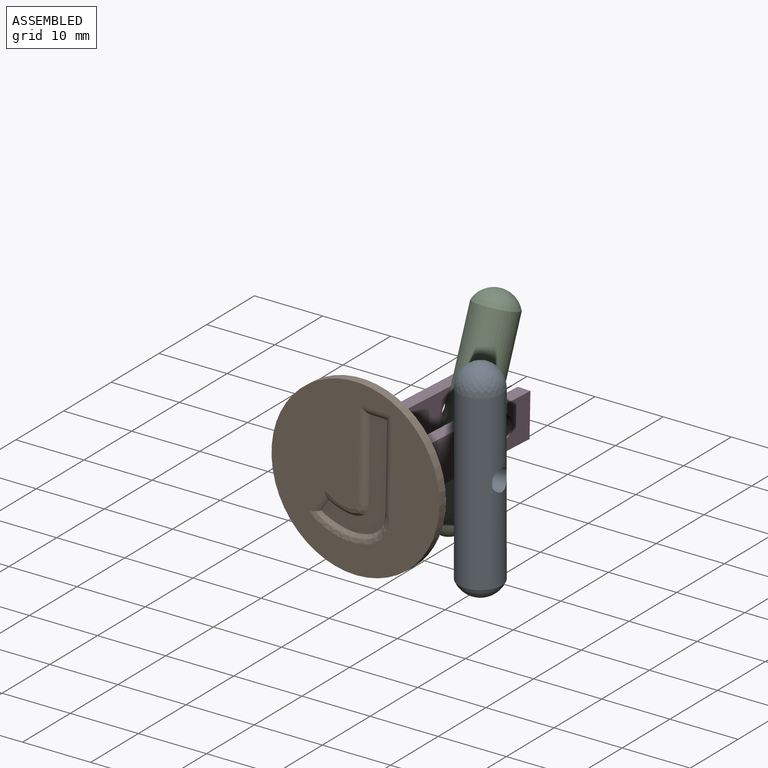
[diagram: assembled view]
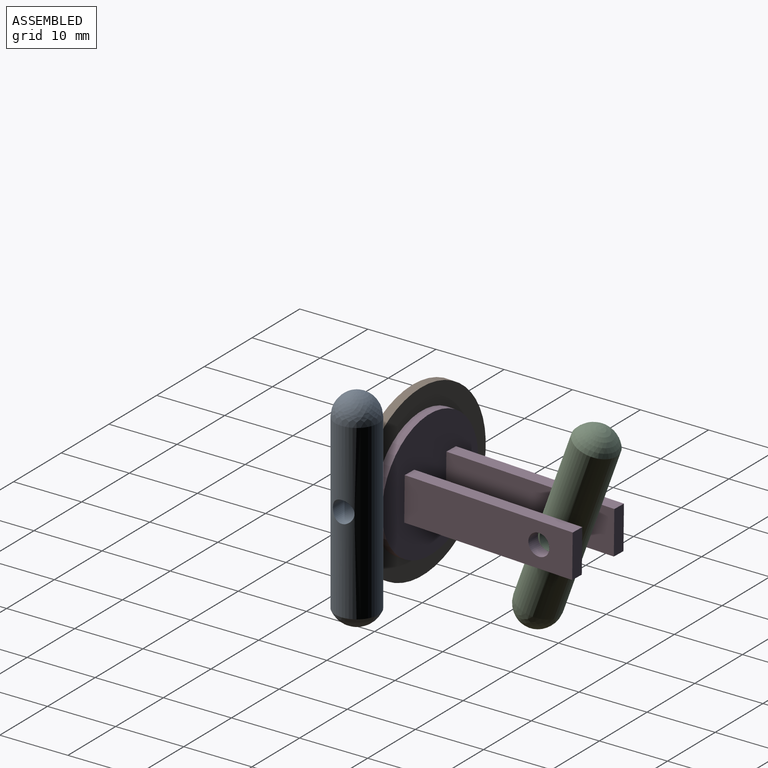
[diagram: assembled view, second angle]
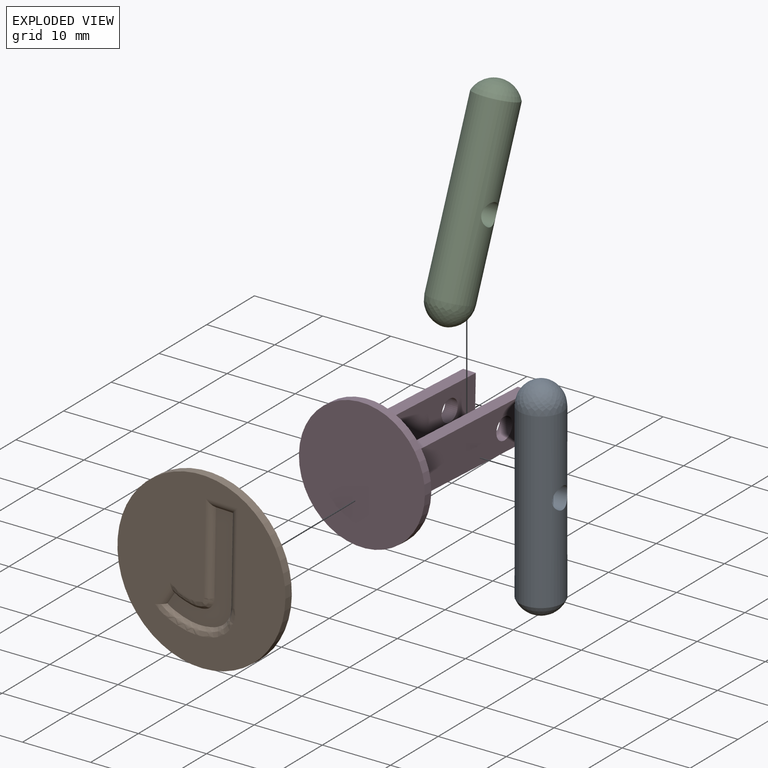
[diagram: exploded view]
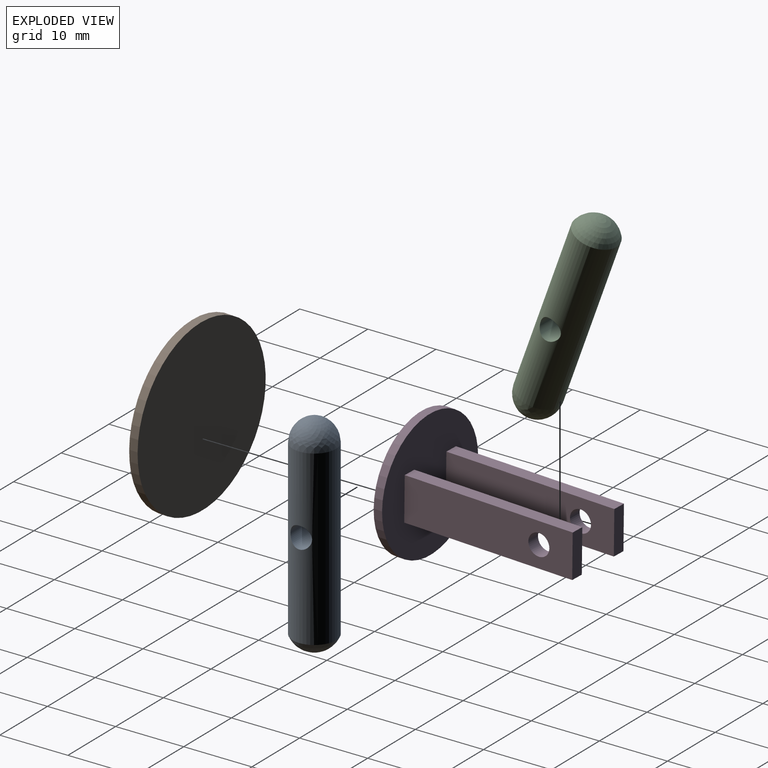
[diagram: exploded view, second angle]
ASSEMBLY  parts=3 mates=2
PART A: 22 faces, bbox 25.8x1.7x25.8 mm
  f0: plane 25.4x25.4mm, normal (0,-1,0), area 394.8mm2, adj f1,f4,f5,f6,f7,f8,f9,f10
  f1: cylinder r=12.7mm len=25.4mm, axis (0,1,0), area 101.3mm2, adj f0,f2
  f2: plane 25.4x25.4mm, normal (0,1,0), area 506.7mm2, adj f1
  f3: plane 16.57x10.04mm, normal (0,-1,0), area 54mm2, adj f4,f5,f6,f7,f8,f9,f10,f11
  f4: cylinder r=1.27mm len=4.8mm, axis (-1,0,0), area 4.9mm2, adj f0,f3,f5,f6
  f5: cylinder r=1.27mm len=13.35mm, axis (0,0,1), area 17mm2, adj f0,f3,f4,f7
  f6: cylinder r=1.27mm len=13.14mm, axis (0,0,-1), area 16.7mm2, adj f0,f3,f4,f8
  f7: bspline ~2.8x1.55mm, area 2.9mm2, adj f0,f3,f5,f9
  f8: bspline ~1.65x1.37mm, area 1.6mm2, adj f0,f3,f6,f10
  f9: bspline ~2.29x2.24mm, area 2.5mm2, adj f0,f3,f7,f11
  f10: bspline ~1.81x1.36mm, area 2.1mm2, adj f0,f3,f8,f12
  f11: bspline ~2.92x2.14mm, area 2.5mm2, adj f0,f3,f9,f13
  f12: bspline ~1.49x1.25mm, area 1.2mm2, adj f0,f3,f10,f14
  f13: bspline ~2.05x1.28mm, area 2.6mm2, adj f0,f3,f11,f15
  f14: bspline ~1.75x1.44mm, area 1.3mm2, adj f0,f3,f12,f16
  f15: bspline ~2.32x1.32mm, area 1.6mm2, adj f0,f3,f13,f17
  f16: bspline ~1.81x1.54mm, area 1.2mm2, adj f0,f3,f14,f18
  f17: bspline ~1.62x1.39mm, area 1.9mm2, adj f0,f3,f15,f19
  f18: bspline ~1.97x1.87mm, area 1.5mm2, adj f0,f3,f16,f20
  f19: bspline ~1.71x1.51mm, area 1.9mm2, adj f0,f3,f17,f21
  f20: cylinder r=1.27mm len=4.15mm, axis (-0.53,0,-0.85), area 4.2mm2, adj f0,f3,f18,f21
  f21: bspline ~3.12x2.56mm, area 2.4mm2, adj f0,f3,f19,f20
PART B: 4 faces, bbox 6.4x6.4x31 mm
  f0: revolved ~6.35x6.35mm, area 65.5mm2, adj f1
  f1: cylinder r=3.17mm len=25.4mm, axis (0,0,-1), area 490.3mm2, adj f0,f2,f3
  f2: sphere r=3.43mm, area 46mm2, adj f1
  f3: cylinder r=1.59mm len=6.35mm, axis (1,0,0), area 59.2mm2, adj f1
PART C: 15 faces, bbox 19.1x26.7x19.1 mm
  f0: plane 19.05x19.05mm, normal (0,1,0), area 260.8mm2, adj f1,f3,f4,f5,f6,f8,f9,f10
  f1: cylinder r=9.53mm len=19.05mm, axis (0,1,0), area 76mm2, adj f0,f2
  f2: plane 19.05x19.05mm, normal (0,-1,0), area 285mm2, adj f1
  f3: plane 25.4x1.91mm, normal (0,0,1), area 48.4mm2, adj f0,f4,f6,f7
  f4: plane 25.4x6.35mm, normal (1,0,0), area 153.4mm2, adj f0,f3,f5,f7,f14
  f5: plane 25.4x1.91mm, normal (0,0,-1), area 48.4mm2, adj f0,f4,f6,f7
  f6: plane 25.4x6.35mm, normal (-1,0,0), area 153.4mm2, adj f0,f3,f5,f7,f14
  f7: plane 6.35x1.91mm, normal (0,1,0), area 12.1mm2, adj f3,f4,f5,f6
  f8: plane 25.4x6.35mm, normal (-1,0,0), area 153.4mm2, adj f0,f9,f11,f12,f13
  f9: plane 25.4x1.91mm, normal (0,0,1), area 48.4mm2, adj f0,f8,f10,f12
  f10: plane 25.4x6.35mm, normal (1,0,0), area 153.4mm2, adj f0,f9,f11,f12,f13
  f11: plane 25.4x1.91mm, normal (0,0,-1), area 48.4mm2, adj f0,f8,f10,f12
  f12: plane 6.35x1.91mm, normal (0,1,0), area 12.1mm2, adj f8,f9,f10,f11
  f13: cylinder r=1.59mm len=3.18mm, axis (1,0,0), area 19mm2, adj f8,f10
  f14: cylinder r=1.59mm len=3.18mm, axis (1,0,0), area 19mm2, adj f4,f6
PLACE A rot(axis=(-0.38,0.16,-0.91),2.6deg) t=(-11.44,8.91,8.78)mm
PLACE B rot(axis=(1,-0.02,-0.01),159.6deg) t=(-10.56,30.48,8.4)mm
PLACE C rot(axis=(-0.38,0.16,-0.91),2.6deg) t=(-11.39,10.18,8.75)mm fixed
MATE planar A.f1 <-> C.f1  axis (0.04,1,-0.02) through (-11.44,8.91,8.78)mm
MATE cylindrical B.f3 <-> C.f13  axis (1,-0.04,-0.01) through (-7.35,30.35,8.38)mm
